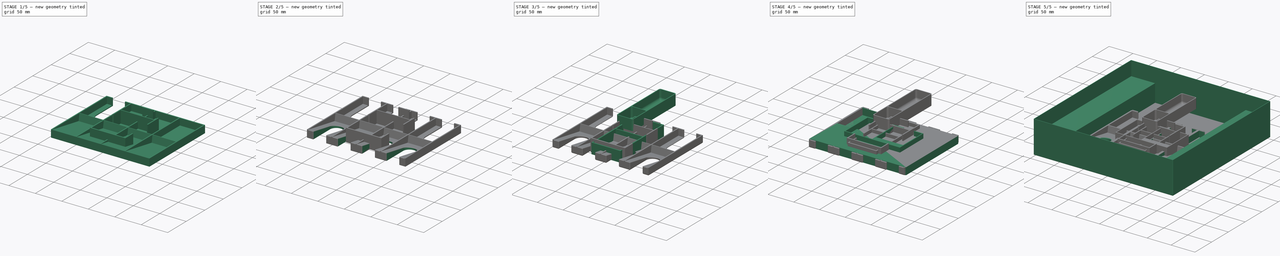
[diagram: build sequence overview — one tinted view per stage of 5, left to right]
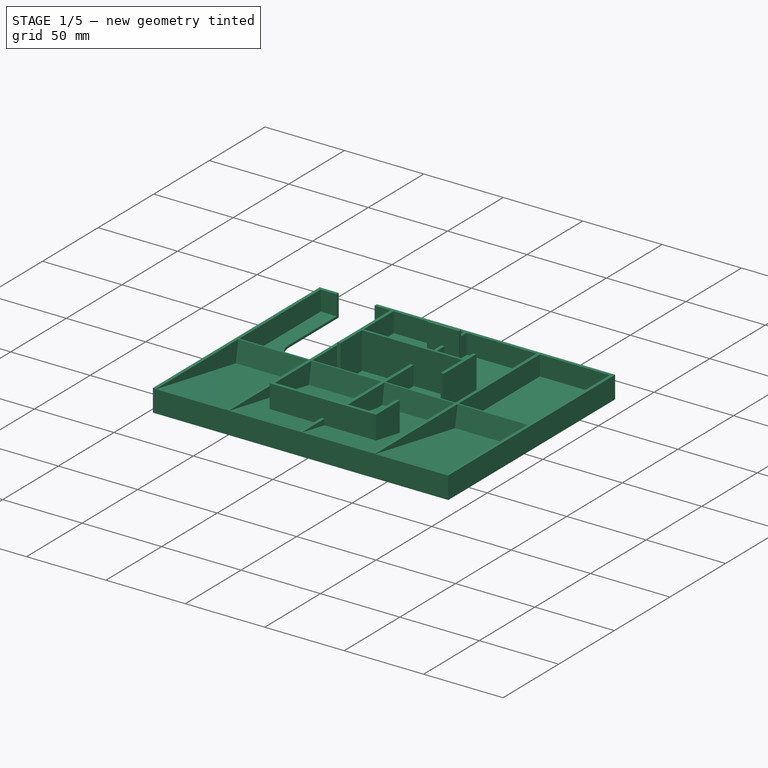
[diagram: stage 1 of 5 — iso view after this stage's code; geometry added in this stage tinted green]
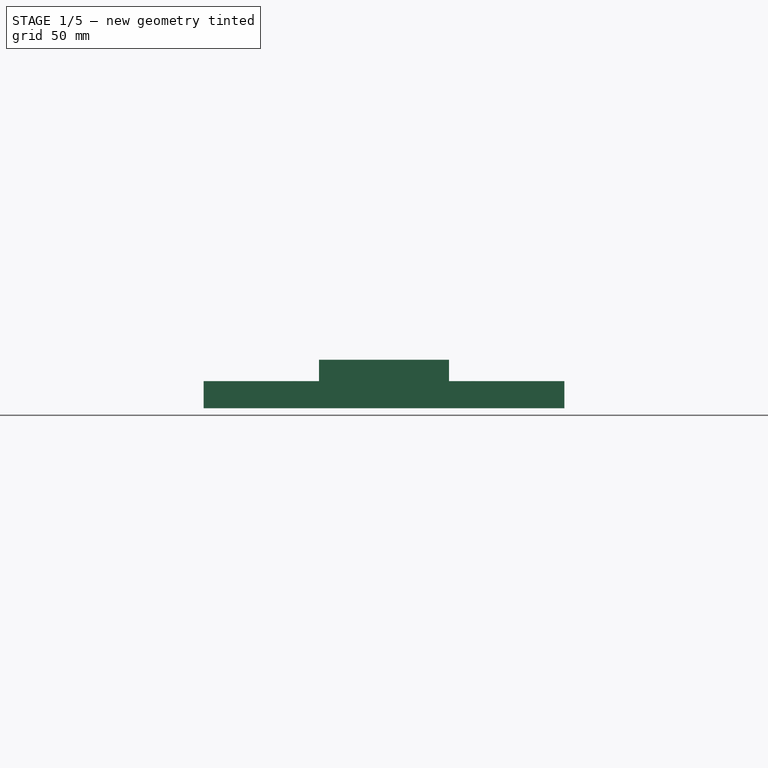
[diagram: stage 1 of 5 — front view after this stage's code; geometry added in this stage tinted green]
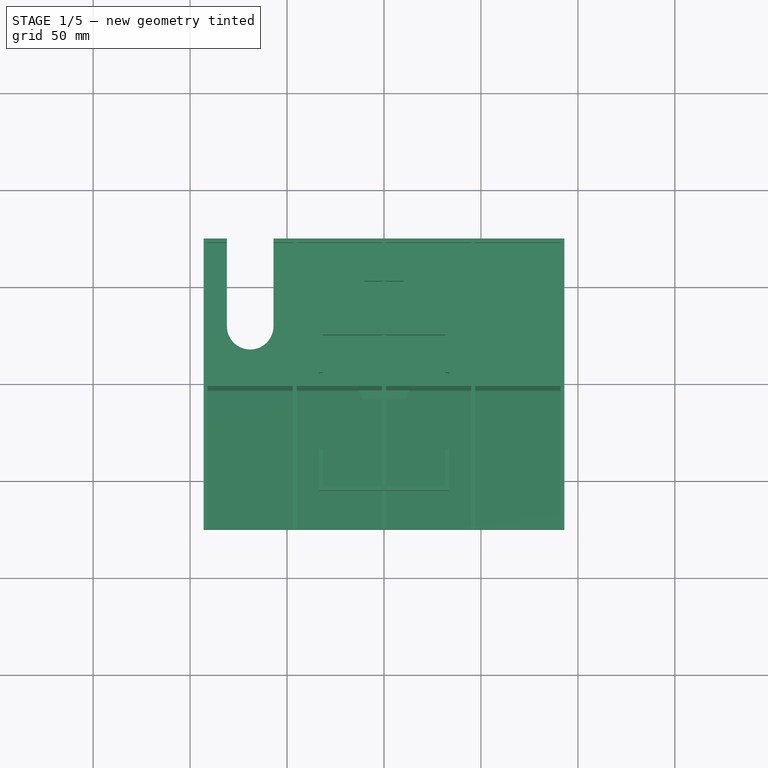
[diagram: stage 1 of 5 — top view after this stage's code; geometry added in this stage tinted green]
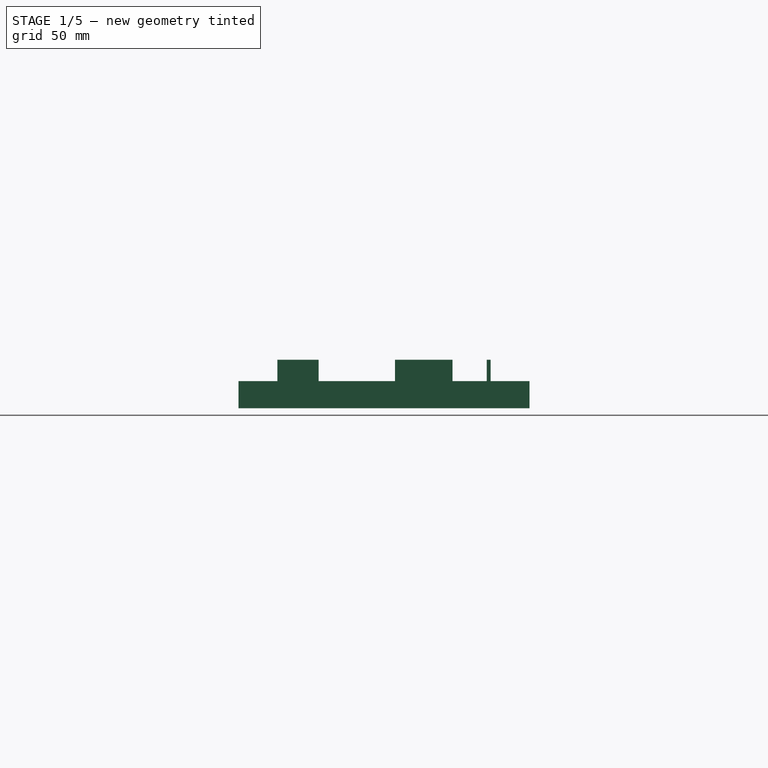
[diagram: stage 1 of 5 — right view after this stage's code; geometry added in this stage tinted green]
FCSTD DOCUMENT  (FreeCAD 0.20R29603 (Git))
Label: DungeonPetz 3
License: All rights reserved
LicenseURL: http://en.wikipedia.org/wiki/All_rights_reserved
objects: Sketcher::SketchObject×25, PartDesign::Fillet×16, PartDesign::Pocket×14, PartDesign::Pad×11, PartDesign::Body×11, PartDesign::LinearPattern×9, PartDesign::Plane×8, PartDesign::Mirrored×7, PartDesign::Thickness×3, PartDesign::MultiTransform×3, PartDesign::FeatureBase×3, App::Part×3
note: 154 computed .brp shape members not serialized (recipe doc carries the construction recipe); baked Part::Feature solids carry a one-line shape summary decoded from their .brp

FEATURE [PartDesign::Body] Body008  label="Needs"
  Group = -> [Sketch014,Pad007,DatumPlane004,Sketch015,Pocket007,LinearPattern003,Sketch016,Pocket008,LinearPattern004,Sketch017,Pocket009,MultiTransform001,LinearPattern005,Mirrored004,Fillet009,Fillet010,Fillet011]
  Origin = -> Origin011
  Placement = pos=(0,71,0) rot=(0,0,1;0rad)
  Tip = -> Fillet011
FEATURE [PartDesign::Mirrored] Mirrored005
  MirrorPlane = -> XZ_Plane012
FEATURE [Sketcher::SketchObject] Sketch018
  FullyConstrained = true
  MapMode = 5
  Support = -> [XY_Plane012]
  sketch-geometry (4):
    g0: LineSegment StartX=-93 StartY=75 StartZ=0 EndX=93 EndY=75 EndZ=0
    g1: LineSegment StartX=93 StartY=75 StartZ=0 EndX=93 EndY=-75 EndZ=0
    g2: LineSegment StartX=93 StartY=-75 StartZ=0 EndX=-93 EndY=-75 EndZ=0
    g3: LineSegment StartX=-93 StartY=-75 StartZ=0 EndX=-93 EndY=75 EndZ=0
  constraints (10):
    c: Coincident(g0,g1)
    c: Coincident(g1,g2)
    c: Coincident(g2,g3)
    c: Coincident(g3,g0)
    c: Horizontal(g2)
    c: Vertical(g1)
    c: DistanceX(g0,g0) = 186
    c: DistanceY(g3,g3) = 150
    c: Symmetric(g0,g2,g-1)
    c: Symmetric(g0,g0,g-2)
FEATURE [PartDesign::Pad] Pad008
  Direction = (0,0,1)
  Length = 14
  Length2 = 10
  Profile = -> Sketch018
  ReferenceAxis = -> Sketch018 [N_Axis]
  Type = 0
FEATURE [PartDesign::Plane] DatumPlane005
  Length = 219.407
  MapMode = 5
  Placement = pos=(0,0,14) rot=(0,0,1;0rad)
  ResizeMode = 0
  Support = -> [Pad008]
  Width = 183.407
FEATURE [Sketcher::SketchObject] Sketch019
  AttachmentOffset = pos=(-69,0,0) rot=(0,0,1;0rad)
  FullyConstrained = true
  MapMode = 5
  Placement = pos=(-69,0,14) rot=(0,0,1;0rad)
  Support = -> [DatumPlane005]
  sketch-geometry (4):
    g0: LineSegment StartX=-22 StartY=73 StartZ=0 EndX=22 EndY=73 EndZ=0
    g1: LineSegment StartX=22 StartY=73 StartZ=0 EndX=22 EndY=0 EndZ=0
    g2: LineSegment StartX=22 StartY=0 StartZ=0 EndX=-22 EndY=0 EndZ=0
    g3: LineSegment StartX=-22 StartY=0 StartZ=0 EndX=-22 EndY=73 EndZ=0
  constraints (11):
    c: Coincident(g0,g1)
    c: Coincident(g1,g2)
    c: Coincident(g2,g3)
    c: Coincident(g3,g0)
    c: Horizontal(g2)
    c: Vertical(g1)
    c: Vertical(g3)
    c: PointOnObject(g1,g-1)
    c: DistanceY(g3,g3) = 73
    c: DistanceX(g0,g0) = 44
    c: Symmetric(g0,g0,g-2)
FEATURE [PartDesign::Pocket] Pocket010
  BaseFeature = -> Pad008
  Direction = (0,0,-1)
  Length = 12.5
  Length2 = 5
  Profile = -> Sketch019
  ReferenceAxis = -> Sketch019 [N_Axis]
  Type = 0
FEATURE [PartDesign::LinearPattern] LinearPattern006
  BaseFeature = -> Pocket010
  Direction = -> Sketch019 [H_Axis]
  Length = 138
  Occurrences = 4
  Originals = -> [Pocket010]
FEATURE [Sketcher::SketchObject] Sketch020
  AttachmentOffset = pos=(-69,-1,0) rot=(1,0,0;-0.174533rad)
  FullyConstrained = true
  MapMode = 5
  Placement = pos=(-69,-1,14) rot=(1,0,0;6.10865rad)
  Support = -> [DatumPlane005]
  sketch-geometry (4):
    g0: LineSegment StartX=-22 StartY=0 StartZ=0 EndX=22 EndY=0 EndZ=0
    g1: LineSegment StartX=22 StartY=0 StartZ=0 EndX=22 EndY=-73 EndZ=0
    g2: LineSegment StartX=22 StartY=-73 StartZ=0 EndX=-22 EndY=-73 EndZ=0
    g3: LineSegment StartX=-22 StartY=-73 StartZ=0 EndX=-22 EndY=0 EndZ=0
  constraints (11):
    c: Coincident(g0,g1)
    c: Coincident(g1,g2)
    c: Coincident(g2,g3)
    c: Coincident(g3,g0)
    c: Horizontal(g2)
    c: Vertical(g1)
    c: Vertical(g3)
    c: PointOnObject(g0,g-1)
    c: DistanceY(g3,g3) = 73
    c: DistanceX(g0,g0) = 44
    c: Symmetric(g0,g0,g-2)
FEATURE [PartDesign::Pocket] Pocket011
  BaseFeature = -> LinearPattern006
  Direction = (0,-0.173648,-0.984808)
  Length = 13
  Length2 = 5
  Profile = -> Sketch020
  ReferenceAxis = -> Sketch020 [N_Axis]
  Type = 0
FEATURE [PartDesign::LinearPattern] LinearPattern007
  BaseFeature = -> Pocket011
  Direction = -> Sketch020 [H_Axis]
  Length = 138
  Occurrences = 4
  Originals = -> [Pocket011]
FEATURE [Sketcher::SketchObject] Sketch021
  AttachmentOffset = pos=(-69,30,0) rot=(0,0,1;0rad)
  FullyConstrained = false
  MapMode = 5
  Placement = pos=(-69,30,14) rot=(0,0,1;0rad)
  Support = -> [DatumPlane005]
  sketch-geometry (4):
    g0: LineSegment StartX=12 StartY=0 StartZ=0 EndX=12 EndY=50 EndZ=0
    g1: LineSegment StartX=12 StartY=50 StartZ=0 EndX=-12 EndY=50 EndZ=0
    g2: LineSegment StartX=-12 StartY=50 StartZ=0 EndX=-12 EndY=0 EndZ=0
    g3: ArcOfCircle CenterX=0 CenterY=0 CenterZ=0 NormalX=0 NormalY=0 NormalZ=1 AngleXU=0 Radius=12 StartAngle=3.14159 EndAngle=6.28319
  constraints (9):
    c: Coincident(g0,g1)
    c: Coincident(g1,g2)
    c: Horizontal(g1)
    c: Vertical(g0)
    c: Vertical(g2)
    c: PointOnObject(g2,g-1)
    c: DistanceX(g1,g1) = 24
    c: Coincident(g3,g-1)
    c: DistanceY(g2,g2) = 50
FEATURE [PartDesign::LinearPattern] LinearPattern008
  Direction = -> Sketch021 [H_Axis]
  Length = 138
  Occurrences = 4
FEATURE [PartDesign::Pocket] Pocket012
  BaseFeature = -> LinearPattern007
  Direction = (0,0,-1)
  Length = 5
  Length2 = 5
  Profile = -> Sketch021
  ReferenceAxis = -> Sketch021 [N_Axis]
  Type = 1
FEATURE [PartDesign::Body] Body009  label="Needs001"
  Group = -> [Sketch018,Pad008,DatumPlane005,Sketch019,Pocket010,LinearPattern006,Sketch020,Pocket011,LinearPattern007,Sketch021,Pocket012,MultiTransform002,LinearPattern008,Mirrored005,Fillet012,Fillet013,Fillet014]
  Origin = -> Origin012
  Placement = pos=(0,71,0) rot=(0,0,1;0rad)
  Tip = -> Fillet014
FEATURE [App::Part] Part001  label="Cards"
  Group = -> [Body001,Body008,Body009]
  Origin = -> Origin002
FEATURE [Sketcher::SketchObject] Sketch022
  FullyConstrained = true
  MapMode = 5
  Support = -> [XY_Plane013]
  expr: Constraints[9] = 78 + 26 + 6
  sketch-geometry (4):
    g0: LineSegment StartX=-33.5 StartY=55 StartZ=0 EndX=33.5 EndY=55 EndZ=0
    g1: LineSegment StartX=33.5 StartY=55 StartZ=0 EndX=33.5 EndY=-55 EndZ=0
    g2: LineSegment StartX=33.5 StartY=-55 StartZ=0 EndX=-33.5 EndY=-55 EndZ=0
    g3: LineSegment StartX=-33.5 StartY=-55 StartZ=0 EndX=-33.5 EndY=55 EndZ=0
  constraints (10):
    c: Coincident(g0,g1)
    c: Coincident(g1,g2)
    c: Coincident(g2,g3)
    c: Coincident(g3,g0)
    c: Horizontal(g2)
    c: Vertical(g1)
    c: DistanceX(g0,g0) = 67
    c: Symmetric(g0,g0,g-2)
    c: Symmetric(g0,g2,g-1)
    c: DistanceY(g3,g3) = 110
FEATURE [PartDesign::Pad] Pad009  label="CagesPad"
  Direction = (0,0,1)
  Length = 25
  Length2 = 10
  Profile = -> Sketch022
  ReferenceAxis = -> Sketch022 [N_Axis]
  Type = 0
FEATURE [PartDesign::Thickness] Thickness002
  Base = -> Pad009 [Face6]
  BaseFeature = -> Pad009
  Intersection = false
  Join = 0
  Mode = 0
  Reversed = true
  SupportTransform = false
  Value = 2
FEATURE [PartDesign::Plane] DatumPlane006
  Length = 124.832
  MapMode = 5
  Placement = pos=(-31.5,0,0) rot=(0.57735,0.57735,0.57735;2.0944rad)
  ResizeMode = 0
  Support = -> [Thickness002]
  Width = 64.8324
FEATURE [Sketcher::SketchObject] Sketch023
  AttachmentOffset = pos=(26,0,0) rot=(0,0,1;0rad)
  FullyConstrained = true
  MapMode = 5
  Placement = pos=(-31.5,26,0) rot=(0.57735,0.57735,0.57735;2.0944rad)
  Support = -> [DatumPlane006]
  expr: Constraints[9] = <<CagesPad>>.Length
  sketch-geometry (4):
    g0: LineSegment StartX=-0.75 StartY=25 StartZ=0 EndX=0.75 EndY=25 EndZ=0
    g1: LineSegment StartX=0.75 StartY=25 StartZ=0 EndX=0.75 EndY=0 EndZ=0
    g2: LineSegment StartX=0.75 StartY=0 StartZ=0 EndX=-0.75 EndY=0 EndZ=0
    g3: LineSegment StartX=-0.75 StartY=0 StartZ=0 EndX=-0.75 EndY=25 EndZ=0
  constraints (11):
    c: Coincident(g0,g1)
    c: Coincident(g1,g2)
    c: Coincident(g2,g3)
    c: Coincident(g3,g0)
    c: Horizontal(g2)
    c: Vertical(g1)
    c: Vertical(g3)
    c: PointOnObject(g2,g-1)
    c: Symmetric(g0,g0,g-2)
    c: DistanceY(g3,g3) = 25
    c: DistanceX(g0,g0) = 1.5
FEATURE [PartDesign::Pad] Pad010
  BaseFeature = -> Thickness002
  Direction = (1,0,0)
  Length = 10
  Length2 = 10
  Profile = -> Sketch023
  ReferenceAxis = -> Sketch023 [N_Axis]
  Type = 3
  UpToFace = -> Thickness002 [Face8]
FEATURE [PartDesign::Plane] DatumPlane007
  Length = 84.1697
  MapMode = 5
  Placement = pos=(0,0,2) rot=(0,0,1;0rad)
  ResizeMode = 0
  Support = -> [Pad010]
  Width = 127.17
FEATURE [Sketcher::SketchObject] Sketch024
  AttachmentOffset = pos=(30,0,0) rot=(0,0,1;0rad)
  FullyConstrained = true
  MapMode = 5
  Placement = pos=(30,0,2) rot=(0,0,1;0rad)
  Support = -> [DatumPlane007]
  sketch-geometry (2):
    g0: Circle CenterX=0 CenterY=-14 CenterZ=0 NormalX=0 NormalY=0 NormalZ=1 AngleXU=0 Radius=20
    g1: Circle CenterX=0 CenterY=55 CenterZ=0 NormalX=0 NormalY=0 NormalZ=1 AngleXU=0 Radius=20
  constraints (6):
    c: PointOnObject(g1,g-2)
    c: Radius(g1) = 20
    c: Radius(g0) = 20
    c: DistanceY(g-1,g1) = 55
    c: PointOnObject(g0,g-2)
    c: DistanceY(g0,g-1) = 14
FEATURE [PartDesign::Pocket] Pocket013
  BaseFeature = -> Pad010
  Direction = (0,0,-1)
  Length = 5
  Length2 = 5
  Midplane = true
  Profile = -> Sketch024
  ReferenceAxis = -> Sketch024 [N_Axis]
  Type = 1
FEATURE [PartDesign::Mirrored] Mirrored006
  BaseFeature = -> Pocket013
  MirrorPlane = -> YZ_Plane013
  Originals = -> [Pocket013]
FEATURE [PartDesign::Fillet] Fillet015
  Base = -> Mirrored006 [Face2]
  BaseFeature = -> Mirrored006
  Radius = 1
  SupportTransform = false
  UseAllEdges = false
FEATURE [PartDesign::Body] Body010  label="Cages"
  Group = -> [Sketch022,Pad009,Thickness002,DatumPlane006,Sketch023,Pad010,DatumPlane007,Sketch024,Pocket013,Mirrored006,Fillet015]
  Origin = -> Origin013
  Placement = pos=(-61,-60,0) rot=(0,0,1;0rad)
  Tip = -> Fillet015
FEATURE [App::Part] Part002  label="Cardboard"
  Group = -> [Body002,Body003,Body004,Body010]
  Origin = -> Origin004
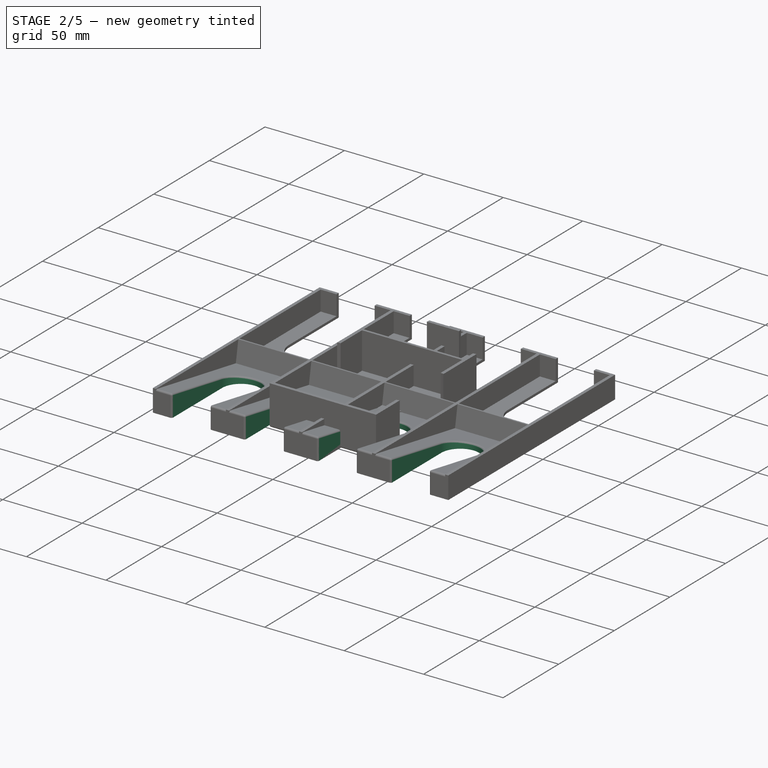
[diagram: stage 2 of 5 — iso view after this stage's code; geometry added in this stage tinted green]
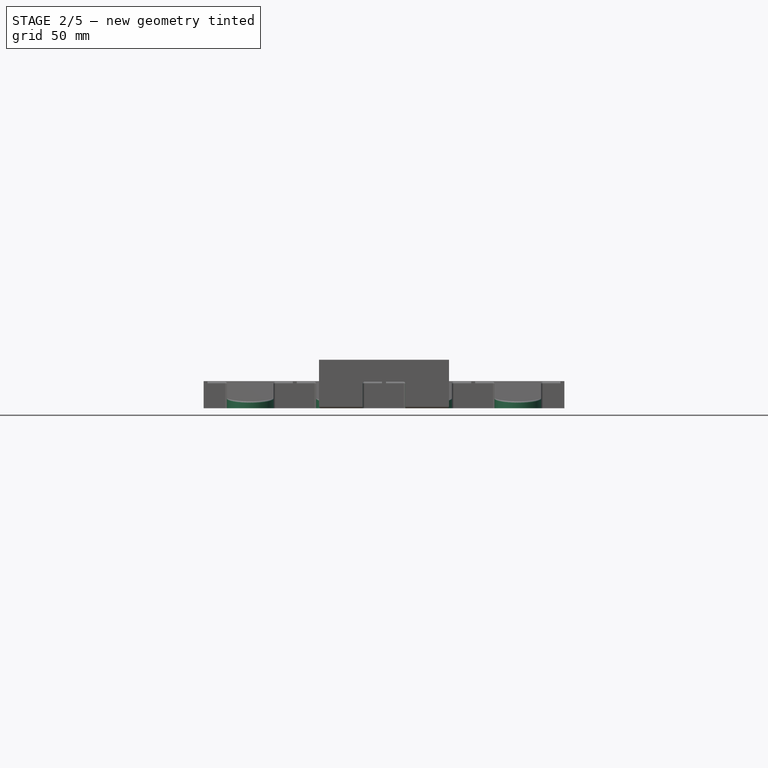
[diagram: stage 2 of 5 — front view after this stage's code; geometry added in this stage tinted green]
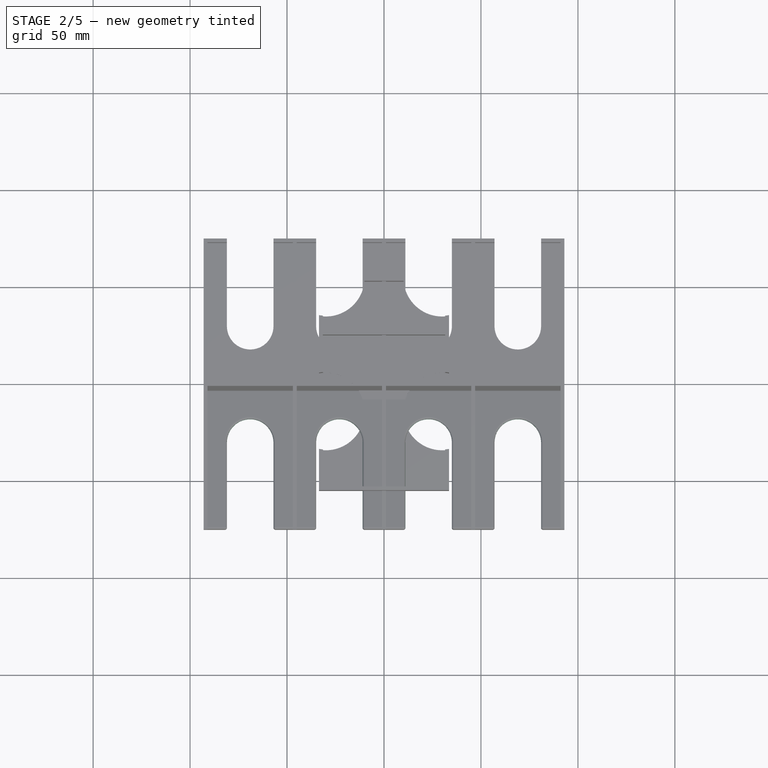
[diagram: stage 2 of 5 — top view after this stage's code; geometry added in this stage tinted green]
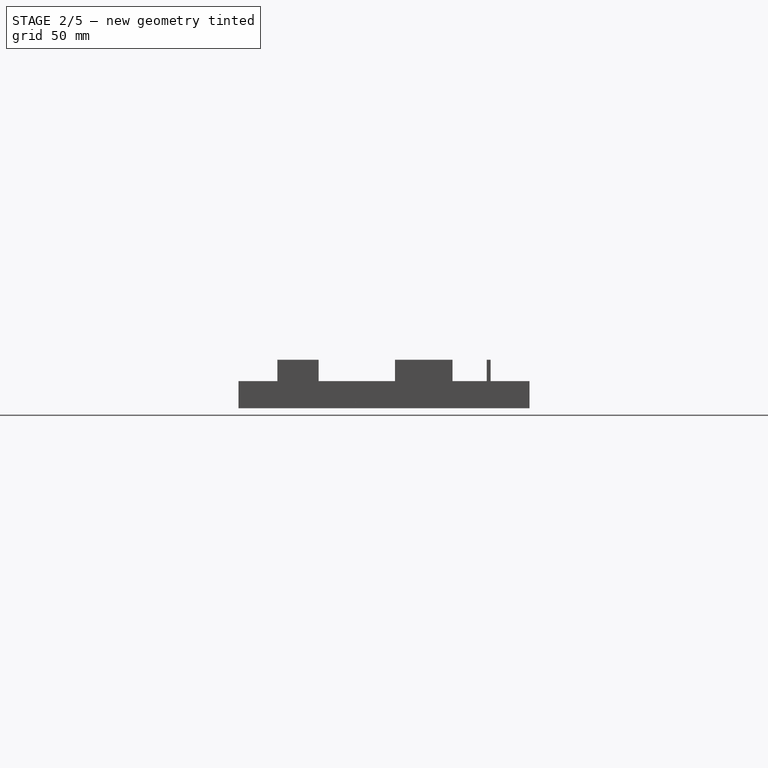
[diagram: stage 2 of 5 — right view after this stage's code; geometry added in this stage tinted green]
FEATURE [PartDesign::Body] Body007  label="PlayerClone03"
  BaseFeature = -> Body004
  Group = -> [Clone002]
  Origin = -> Origin010
  Placement = pos=(96,0,0) rot=(0,0,1;0rad)
  Tip = -> Clone002
FEATURE [App::Part] Part  label="Box"
  Group = -> [Body,Body005,Body006,Body007]
  Origin = -> Origin001
FEATURE [PartDesign::Mirrored] Mirrored004
  MirrorPlane = -> XZ_Plane011
FEATURE [Sketcher::SketchObject] Sketch014
  FullyConstrained = true
  MapMode = 5
  Support = -> [XY_Plane011]
  sketch-geometry (4):
    g0: LineSegment StartX=-93 StartY=75 StartZ=0 EndX=93 EndY=75 EndZ=0
    g1: LineSegment StartX=93 StartY=75 StartZ=0 EndX=93 EndY=-75 EndZ=0
    g2: LineSegment StartX=93 StartY=-75 StartZ=0 EndX=-93 EndY=-75 EndZ=0
    g3: LineSegment StartX=-93 StartY=-75 StartZ=0 EndX=-93 EndY=75 EndZ=0
  constraints (10):
    c: Coincident(g0,g1)
    c: Coincident(g1,g2)
    c: Coincident(g2,g3)
    c: Coincident(g3,g0)
    c: Horizontal(g2)
    c: Vertical(g1)
    c: DistanceX(g0,g0) = 186
    c: DistanceY(g3,g3) = 150
    c: Symmetric(g0,g2,g-1)
    c: Symmetric(g0,g0,g-2)
FEATURE [PartDesign::Pad] Pad007
  Direction = (0,0,1)
  Length = 14
  Length2 = 10
  Profile = -> Sketch014
  ReferenceAxis = -> Sketch014 [N_Axis]
  Type = 0
FEATURE [PartDesign::Plane] DatumPlane004
  Length = 219.407
  MapMode = 5
  Placement = pos=(0,0,14) rot=(0,0,1;0rad)
  ResizeMode = 0
  Support = -> [Pad007]
  Width = 183.407
FEATURE [Sketcher::SketchObject] Sketch015
  AttachmentOffset = pos=(-69,0,0) rot=(0,0,1;0rad)
  FullyConstrained = true
  MapMode = 5
  Placement = pos=(-69,0,14) rot=(0,0,1;0rad)
  Support = -> [DatumPlane004]
  sketch-geometry (4):
    g0: LineSegment StartX=-22 StartY=73 StartZ=0 EndX=22 EndY=73 EndZ=0
    g1: LineSegment StartX=22 StartY=73 StartZ=0 EndX=22 EndY=0 EndZ=0
    g2: LineSegment StartX=22 StartY=0 StartZ=0 EndX=-22 EndY=0 EndZ=0
    g3: LineSegment StartX=-22 StartY=0 StartZ=0 EndX=-22 EndY=73 EndZ=0
  constraints (11):
    c: Coincident(g0,g1)
    c: Coincident(g1,g2)
    c: Coincident(g2,g3)
    c: Coincident(g3,g0)
    c: Horizontal(g2)
    c: Vertical(g1)
    c: Vertical(g3)
    c: PointOnObject(g1,g-1)
    c: DistanceY(g3,g3) = 73
    c: DistanceX(g0,g0) = 44
    c: Symmetric(g0,g0,g-2)
FEATURE [PartDesign::Pocket] Pocket007
  BaseFeature = -> Pad007
  Direction = (0,0,-1)
  Length = 12.5
  Length2 = 5
  Profile = -> Sketch015
  ReferenceAxis = -> Sketch015 [N_Axis]
  Type = 0
FEATURE [PartDesign::LinearPattern] LinearPattern003
  BaseFeature = -> Pocket007
  Direction = -> Sketch015 [H_Axis]
  Length = 138
  Occurrences = 4
  Originals = -> [Pocket007]
FEATURE [Sketcher::SketchObject] Sketch016
  AttachmentOffset = pos=(-69,-1,0) rot=(1,0,0;-0.174533rad)
  FullyConstrained = true
  MapMode = 5
  Placement = pos=(-69,-1,14) rot=(1,0,0;6.10865rad)
  Support = -> [DatumPlane004]
  sketch-geometry (4):
    g0: LineSegment StartX=-22 StartY=0 StartZ=0 EndX=22 EndY=0 EndZ=0
    g1: LineSegment StartX=22 StartY=0 StartZ=0 EndX=22 EndY=-73 EndZ=0
    g2: LineSegment StartX=22 StartY=-73 StartZ=0 EndX=-22 EndY=-73 EndZ=0
    g3: LineSegment StartX=-22 StartY=-73 StartZ=0 EndX=-22 EndY=0 EndZ=0
  constraints (11):
    c: Coincident(g0,g1)
    c: Coincident(g1,g2)
    c: Coincident(g2,g3)
    c: Coincident(g3,g0)
    c: Horizontal(g2)
    c: Vertical(g1)
    c: Vertical(g3)
    c: PointOnObject(g0,g-1)
    c: DistanceY(g3,g3) = 73
    c: DistanceX(g0,g0) = 44
    c: Symmetric(g0,g0,g-2)
FEATURE [PartDesign::Pocket] Pocket008
  BaseFeature = -> LinearPattern003
  Direction = (0,-0.173648,-0.984808)
  Length = 13
  Length2 = 5
  Profile = -> Sketch016
  ReferenceAxis = -> Sketch016 [N_Axis]
  Type = 0
FEATURE [PartDesign::LinearPattern] LinearPattern004
  BaseFeature = -> Pocket008
  Direction = -> Sketch016 [H_Axis]
  Length = 138
  Occurrences = 4
  Originals = -> [Pocket008]
FEATURE [Sketcher::SketchObject] Sketch017
  AttachmentOffset = pos=(-69,30,0) rot=(0,0,1;0rad)
  FullyConstrained = false
  MapMode = 5
  Placement = pos=(-69,30,14) rot=(0,0,1;0rad)
  Support = -> [DatumPlane004]
  sketch-geometry (4):
    g0: LineSegment StartX=12 StartY=0 StartZ=0 EndX=12 EndY=50 EndZ=0
    g1: LineSegment StartX=12 StartY=50 StartZ=0 EndX=-12 EndY=50 EndZ=0
    g2: LineSegment StartX=-12 StartY=50 StartZ=0 EndX=-12 EndY=0 EndZ=0
    g3: ArcOfCircle CenterX=0 CenterY=0 CenterZ=0 NormalX=0 NormalY=0 NormalZ=1 AngleXU=0 Radius=12 StartAngle=3.14159 EndAngle=6.28319
  constraints (9):
    c: Coincident(g0,g1)
    c: Coincident(g1,g2)
    c: Horizontal(g1)
    c: Vertical(g0)
    c: Vertical(g2)
    c: PointOnObject(g2,g-1)
    c: DistanceX(g1,g1) = 24
    c: Coincident(g3,g-1)
    c: DistanceY(g2,g2) = 50
FEATURE [PartDesign::LinearPattern] LinearPattern005
  Direction = -> Sketch017 [H_Axis]
  Length = 138
  Occurrences = 4
FEATURE [PartDesign::Pocket] Pocket009
  BaseFeature = -> LinearPattern004
  Direction = (0,0,-1)
  Length = 5
  Length2 = 5
  Profile = -> Sketch017
  ReferenceAxis = -> Sketch017 [N_Axis]
  Type = 1
FEATURE [PartDesign::MultiTransform] MultiTransform001
  BaseFeature = -> Pocket009
  Originals = -> [Pocket009]
  Transformations = -> [LinearPattern005,Mirrored004]
FEATURE [PartDesign::Fillet] Fillet009
  Base = -> MultiTransform001 [Edge169,Edge160,Edge158,Edge149,Edge147,Edge138,Edge136,Edge129,Edge172,Edge161,Edge164,Edge150,Edge153,Edge139,Edge142,Edge130,Edge170,Edge167,Edge165,Edge159,Edge156,Edge154,Edge148,Edge145,Edge143,Edge137,Edge134,Edge132]
  BaseFeature = -> MultiTransform001
  Radius = 1
  SupportTransform = false
  UseAllEdges = false
FEATURE [PartDesign::MultiTransform] MultiTransform002
  BaseFeature = -> Pocket012
  Originals = -> [Pocket012]
  Transformations = -> [LinearPattern008,Mirrored005]
FEATURE [PartDesign::Fillet] Fillet012
  Base = -> MultiTransform002 [Edge169,Edge160,Edge158,Edge149,Edge147,Edge138,Edge136,Edge129,Edge172,Edge161,Edge164,Edge150,Edge153,Edge139,Edge142,Edge130,Edge170,Edge167,Edge165,Edge159,Edge156,Edge154,Edge148,Edge145,Edge143,Edge137,Edge134,Edge132]
  BaseFeature = -> MultiTransform002
  Radius = 1
  SupportTransform = false
  UseAllEdges = false
FEATURE [PartDesign::Fillet] Fillet013
  Base = -> Fillet012 [Edge61,Edge67,Edge62,Edge73,Edge72,Edge88,Edge87,Edge93,Edge99,Edge98,Edge108,Edge107,Edge119,Edge125,Edge124,Edge134,Edge133,Edge139,Edge145,Edge144]
  BaseFeature = -> Fillet012
  Radius = 1
  SupportTransform = false
  UseAllEdges = false
FEATURE [PartDesign::Fillet] Fillet014
  Base = -> Fillet013 [Edge108,Edge74,Edge68,Edge82,Edge90,Edge98,Edge106,Edge72,Edge81,Edge93,Edge105,Edge110]
  BaseFeature = -> Fillet013
  Radius = 2
  SupportTransform = false
  UseAllEdges = false
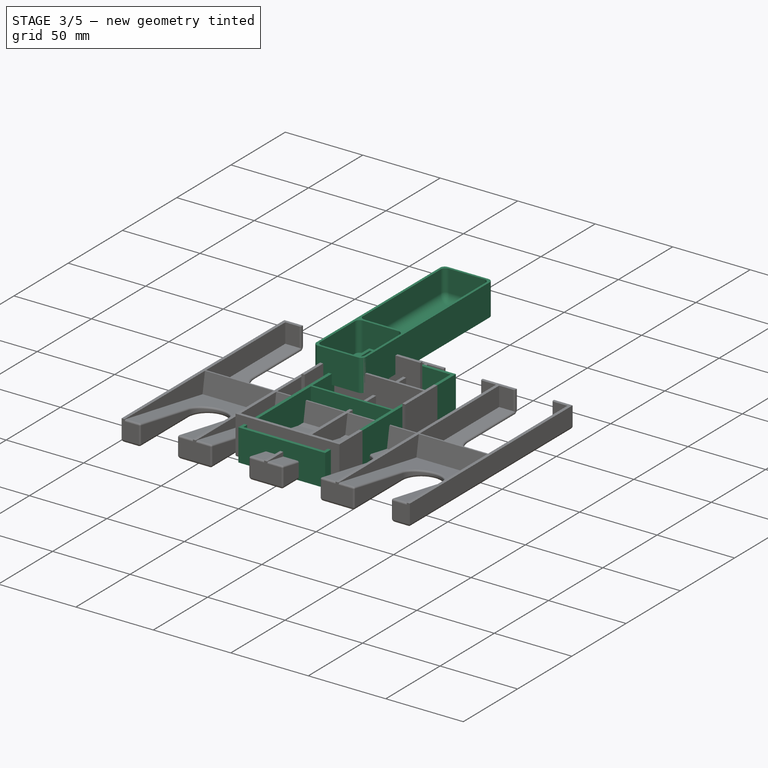
[diagram: stage 3 of 5 — iso view after this stage's code; geometry added in this stage tinted green]
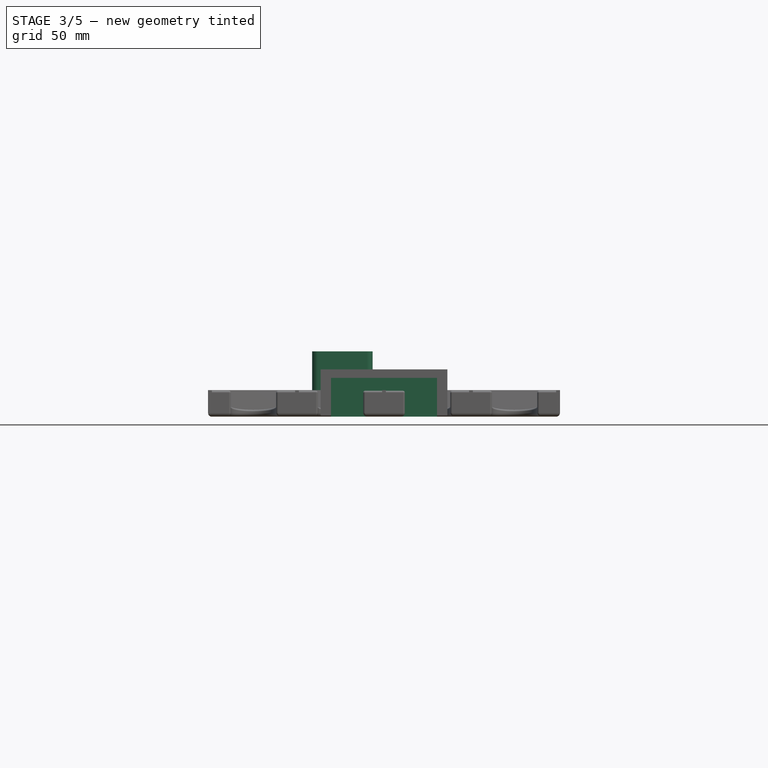
[diagram: stage 3 of 5 — front view after this stage's code; geometry added in this stage tinted green]
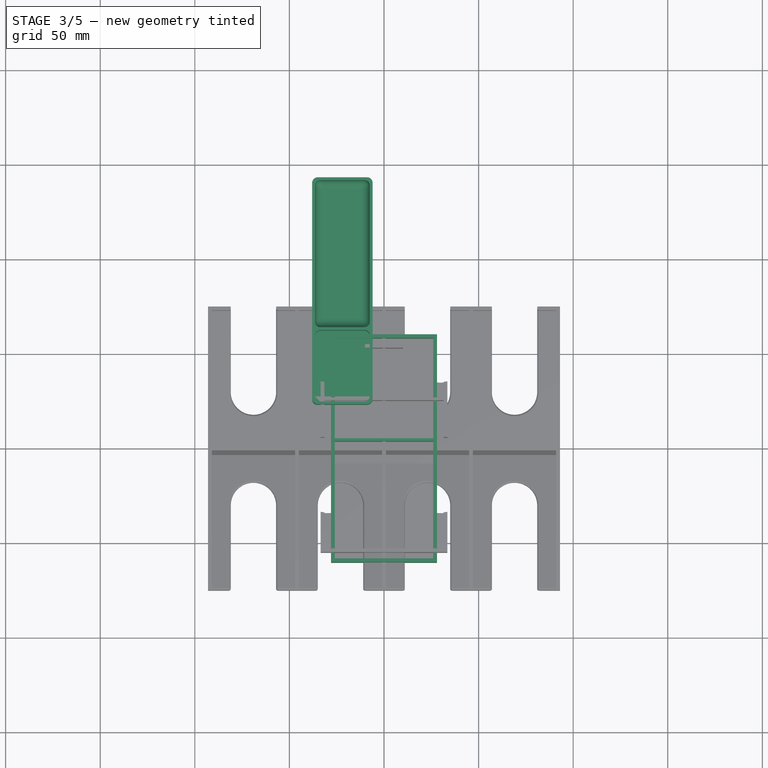
[diagram: stage 3 of 5 — top view after this stage's code; geometry added in this stage tinted green]
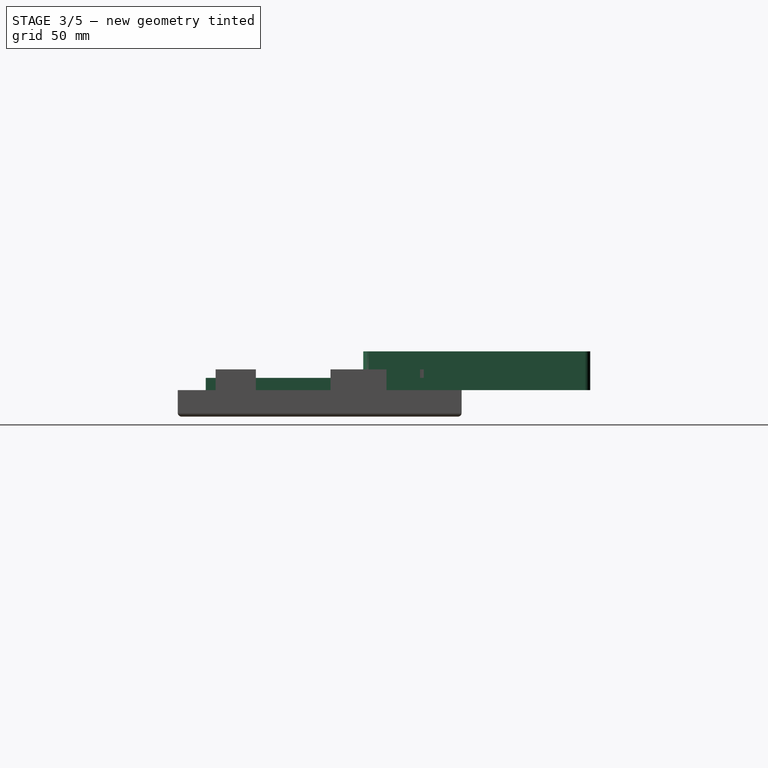
[diagram: stage 3 of 5 — right view after this stage's code; geometry added in this stage tinted green]
FEATURE [PartDesign::Body] Body002  label="RoundSetup-Horizontal"
  Group = -> [Sketch006,Pad003,DatumPlane001,Sketch007,Pocket003,Sketch008,Pocket004,Mirrored002,Fillet003,Fillet004]
  Origin = -> Origin005
  Placement = pos=(-41,113,14) rot=(0,0,1;0rad)
  Tip = -> Fillet004
FEATURE [Sketcher::SketchObject] Sketch009
  FullyConstrained = true
  MapMode = 5
  Support = -> [XY_Plane006]
  expr: Constraints[9] = 62 + 53 + 4.5 + 1
  sketch-geometry (4):
    g0: LineSegment StartX=-28 StartY=60.25 StartZ=0 EndX=28 EndY=60.25 EndZ=0
    g1: LineSegment StartX=28 StartY=60.25 StartZ=0 EndX=28 EndY=-60.25 EndZ=0
    g2: LineSegment StartX=28 StartY=-60.25 StartZ=0 EndX=-28 EndY=-60.25 EndZ=0
    g3: LineSegment StartX=-28 StartY=-60.25 StartZ=0 EndX=-28 EndY=60.25 EndZ=0
  constraints (10):
    c: Coincident(g0,g1)
    c: Coincident(g1,g2)
    c: Coincident(g2,g3)
    c: Coincident(g3,g0)
    c: Horizontal(g2)
    c: Vertical(g1)
    c: Symmetric(g0,g0,g-2)
    c: Symmetric(g0,g2,g-1)
    c: DistanceX(g0,g0) = 56
    c: DistanceY(g3,g3) = 120.5
FEATURE [PartDesign::Pad] Pad004
  Direction = (0,0,1)
  Length = 20.5
  Length2 = 10
  Profile = -> Sketch009
  ReferenceAxis = -> Sketch009 [N_Axis]
  Type = 0
FEATURE [PartDesign::Plane] DatumPlane002
  Length = 72.4292
  MapMode = 5
  Placement = pos=(0,0,20.5) rot=(0,0,1;0rad)
  ResizeMode = 0
  Support = -> [Pad004]
  Width = 136.929
FEATURE [Sketcher::SketchObject] Sketch010
  AttachmentOffset = pos=(0,4.5,0) rot=(0,0,1;0rad)
  FullyConstrained = true
  MapMode = 5
  Placement = pos=(0,4.5,20.5) rot=(0,0,1;0rad)
  Support = -> [DatumPlane002]
  sketch-geometry (8):
    g0: LineSegment StartX=-26 StartY=0.75 StartZ=0 EndX=26 EndY=0.75 EndZ=0
    g1: LineSegment StartX=26 StartY=0.75 StartZ=0 EndX=26 EndY=53.75 EndZ=0
    g2: LineSegment StartX=26 StartY=53.75 StartZ=0 EndX=-26 EndY=53.75 EndZ=0
    g3: LineSegment StartX=-26 StartY=53.75 StartZ=0 EndX=-26 EndY=0.75 EndZ=0
    g4: LineSegment StartX=-26 StartY=-0.75 StartZ=0 EndX=26 EndY=-0.75 EndZ=0
    g5: LineSegment StartX=26 StartY=-0.75 StartZ=0 EndX=26 EndY=-62.75 EndZ=0
    g6: LineSegment StartX=26 StartY=-62.75 StartZ=0 EndX=-26 EndY=-62.75 EndZ=0
    g7: LineSegment StartX=-26 StartY=-62.75 StartZ=0 EndX=-26 EndY=-0.75 EndZ=0
  constraints (21):
    c: Coincident(g0,g1)
    c: Coincident(g1,g2)
    c: Coincident(g2,g3)
    c: Coincident(g3,g0)
    c: Horizontal(g2)
    c: Vertical(g1)
    c: Vertical(g3)
    c: Coincident(g4,g5)
    c: Coincident(g5,g6)
    c: Coincident(g6,g7)
    c: Coincident(g7,g4)
    c: Horizontal(g6)
    c: Vertical(g5)
    c: Vertical(g7)
    c: Symmetric(g4,g4,g-2)
    c: Symmetric(g0,g0,g-2)
    c: Symmetric(g0,g4,g-1)
    c: DistanceX(g2,g2) = 52
    c: DistanceY(g3,g3) = 53
    c: DistanceY(g7,g7) = 62
    c: DistanceY(g4,g0) = 1.5
FEATURE [PartDesign::Pocket] Pocket005
  BaseFeature = -> Pad004
  Direction = (0,0,-1)
  Length = 18.5
  Length2 = 5
  Profile = -> Sketch010
  ReferenceAxis = -> Sketch010 [N_Axis]
  Type = 0
FEATURE [PartDesign::Body] Body003  label="RoundSetup"
  Group = -> [Sketch009,Pad004,DatumPlane002,Sketch010,Pocket005,Sketch011,Pocket006,Mirrored003,Fillet005,Fillet006]
  Origin = -> Origin006
  Placement = pos=(-67,84,14) rot=(0,0,1;0rad)
  Tip = -> Fillet006
FEATURE [Sketcher::SketchObject] Sketch012
  FullyConstrained = true
  MapMode = 5
  Support = -> [XY_Plane007]
  sketch-geometry (4):
    g0: LineSegment StartX=-16 StartY=60 StartZ=0 EndX=16 EndY=60 EndZ=0
    g1: LineSegment StartX=16 StartY=60 StartZ=0 EndX=16 EndY=-60 EndZ=0
    g2: LineSegment StartX=16 StartY=-60 StartZ=0 EndX=-16 EndY=-60 EndZ=0
    g3: LineSegment StartX=-16 StartY=-60 StartZ=0 EndX=-16 EndY=60 EndZ=0
  constraints (10):
    c: Coincident(g0,g1)
    c: Coincident(g1,g2)
    c: Coincident(g2,g3)
    c: Coincident(g3,g0)
    c: Horizontal(g2)
    c: Vertical(g1)
    c: DistanceX(g0,g0) = 32
    c: DistanceY(g3,g3) = 120
    c: Symmetric(g0,g0,g-2)
    c: Symmetric(g0,g2,g-1)
FEATURE [PartDesign::Pad] Pad005  label="PadPlayerTray"
  Direction = (0,0,1)
  Length = 20.5
  Length2 = 10
  Profile = -> Sketch012
  ReferenceAxis = -> Sketch012 [N_Axis]
  Type = 0
FEATURE [PartDesign::Thickness] Thickness001
  Base = -> Pad005 [Face6]
  BaseFeature = -> Pad005
  Intersection = false
  Join = 0
  Mode = 0
  Reversed = true
  SupportTransform = false
  Value = 1.5
FEATURE [PartDesign::Plane] DatumPlane003
  Length = 135.492
  MapMode = 5
  Placement = pos=(-14.5,0,0) rot=(0.57735,0.57735,0.57735;2.0944rad)
  ResizeMode = 0
  Support = -> [Thickness001]
  Width = 65.4919
FEATURE [Sketcher::SketchObject] Sketch013
  AttachmentOffset = pos=(-20,0,0) rot=(0,0,1;0rad)
  FullyConstrained = true
  MapMode = 5
  Placement = pos=(-14.5,-20,0) rot=(0.57735,0.57735,0.57735;2.0944rad)
  Support = -> [DatumPlane003]
  expr: Constraints[10] = <<PadPlayerTray>>.Length
  sketch-geometry (4):
    g0: LineSegment StartX=-0.75 StartY=0 StartZ=0 EndX=0.75 EndY=0 EndZ=0
    g1: LineSegment StartX=0.75 StartY=0 StartZ=0 EndX=0.75 EndY=20.5 EndZ=0
    g2: LineSegment StartX=0.75 StartY=20.5 StartZ=0 EndX=-0.75 EndY=20.5 EndZ=0
    g3: LineSegment StartX=-0.75 StartY=20.5 StartZ=0 EndX=-0.75 EndY=0 EndZ=0
  constraints (11):
    c: Coincident(g0,g1)
    c: Coincident(g1,g2)
    c: Coincident(g2,g3)
    c: Coincident(g3,g0)
    c: Horizontal(g0)
    c: Vertical(g1)
    c: Vertical(g3)
    c: PointOnObject(g0,g-1)
    c: Symmetric(g2,g1,g-2)
    c: DistanceX(g2,g2) = 1.5
    c: DistanceY(g3,g3) = 20.5
FEATURE [PartDesign::Pad] Pad006
  BaseFeature = -> Thickness001
  Direction = (1,0,0)
  Length = 10
  Length2 = 10
  Profile = -> Sketch013
  ReferenceAxis = -> Sketch013 [N_Axis]
  Type = 3
  UpToFace = -> Thickness001 [Face8]
FEATURE [PartDesign::Fillet] Fillet007
  Base = -> Pad006 [Edge34,Edge35,Edge2,Edge1,Edge25,Edge5,Edge29,Edge32,Edge38,Edge39,Edge27,Edge8]
  BaseFeature = -> Pad006
  Radius = 3
  SupportTransform = false
  UseAllEdges = false
FEATURE [PartDesign::Fillet] Fillet008
  Base = -> Fillet007 [Face30]
  BaseFeature = -> Fillet007
  Radius = 5
  SupportTransform = false
  UseAllEdges = false
FEATURE [PartDesign::Body] Body004  label="Player"
  Group = -> [Sketch012,Pad005,Thickness001,DatumPlane003,Sketch013,Pad006,Fillet007,Fillet008]
  Origin = -> Origin007
  Placement = pos=(-22,83,14) rot=(0,0,1;0rad)
  Tip = -> Fillet008
FEATURE [PartDesign::FeatureBase] Clone
  BaseFeature = -> Body004
  Placement = pos=(-22,83,14) rot=(0,0,1;0rad)
FEATURE [PartDesign::Body] Body005  label="PlayerClone01"
  BaseFeature = -> Body004
  Group = -> [Clone]
  Origin = -> Origin008
  Placement = pos=(32,0,0) rot=(0,0,1;0rad)
  Tip = -> Clone
FEATURE [PartDesign::FeatureBase] Clone001
  BaseFeature = -> Body004
  Placement = pos=(-22,83,14) rot=(0,0,1;0rad)
FEATURE [PartDesign::Body] Body006  label="PlayerClone02"
  BaseFeature = -> Body004
  Group = -> [Clone001]
  Origin = -> Origin009
  Placement = pos=(64,0,0) rot=(0,0,1;0rad)
  Tip = -> Clone001
FEATURE [PartDesign::FeatureBase] Clone002
  BaseFeature = -> Body004
  Placement = pos=(-22,83,14) rot=(0,0,1;0rad)
FEATURE [PartDesign::Fillet] Fillet010
  Base = -> Fillet009 [Edge61,Edge67,Edge62,Edge73,Edge72,Edge88,Edge87,Edge93,Edge99,Edge98,Edge108,Edge107,Edge119,Edge125,Edge124,Edge134,Edge133,Edge139,Edge145,Edge144]
  BaseFeature = -> Fillet009
  Radius = 1
  SupportTransform = false
  UseAllEdges = false
FEATURE [PartDesign::Fillet] Fillet011
  Base = -> Fillet010 [Edge108,Edge74,Edge68,Edge82,Edge90,Edge98,Edge106,Edge72,Edge81,Edge93,Edge105,Edge110]
  BaseFeature = -> Fillet010
  Radius = 2
  SupportTransform = false
  UseAllEdges = false
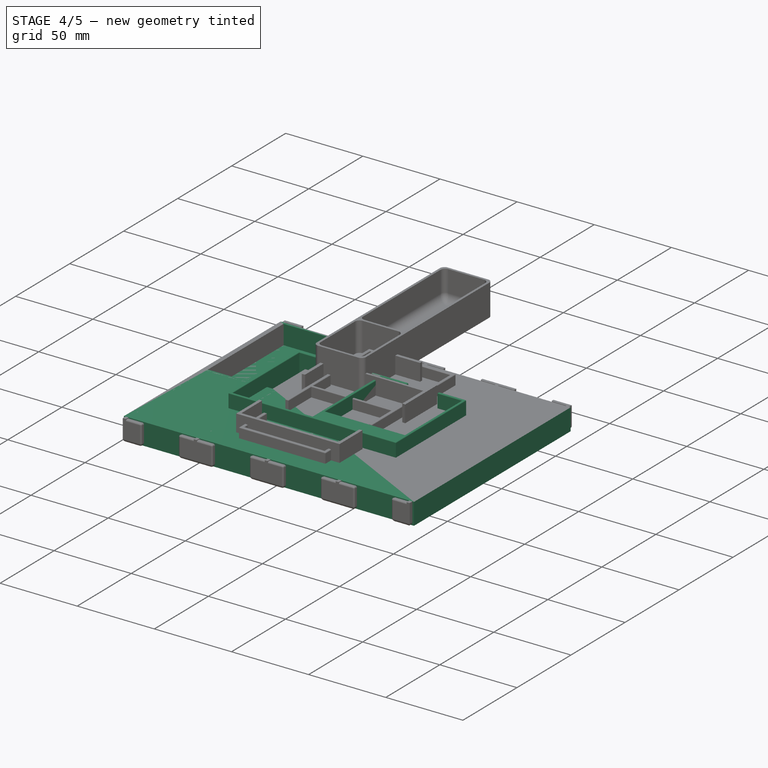
[diagram: stage 4 of 5 — iso view after this stage's code; geometry added in this stage tinted green]
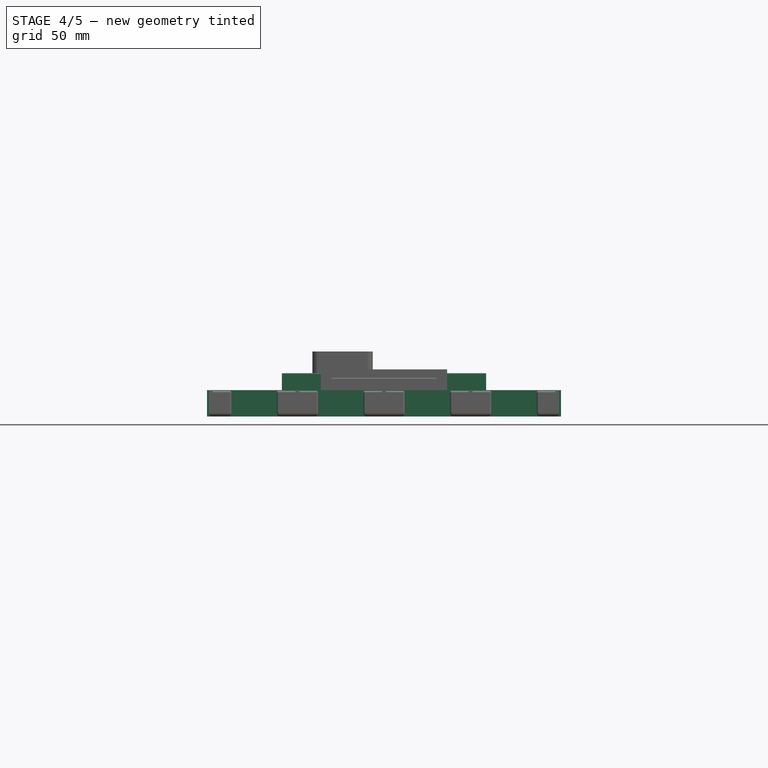
[diagram: stage 4 of 5 — front view after this stage's code; geometry added in this stage tinted green]
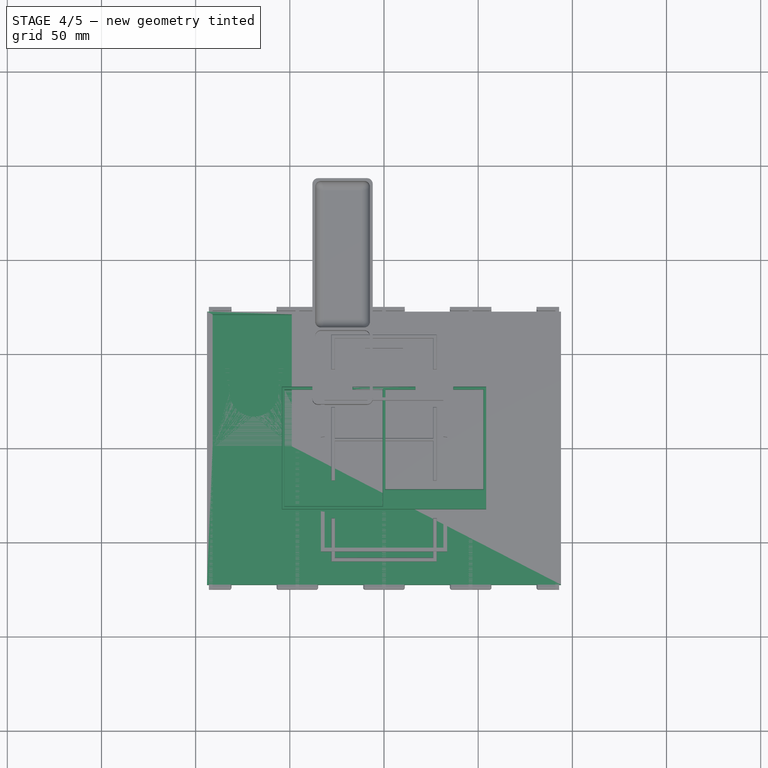
[diagram: stage 4 of 5 — top view after this stage's code; geometry added in this stage tinted green]
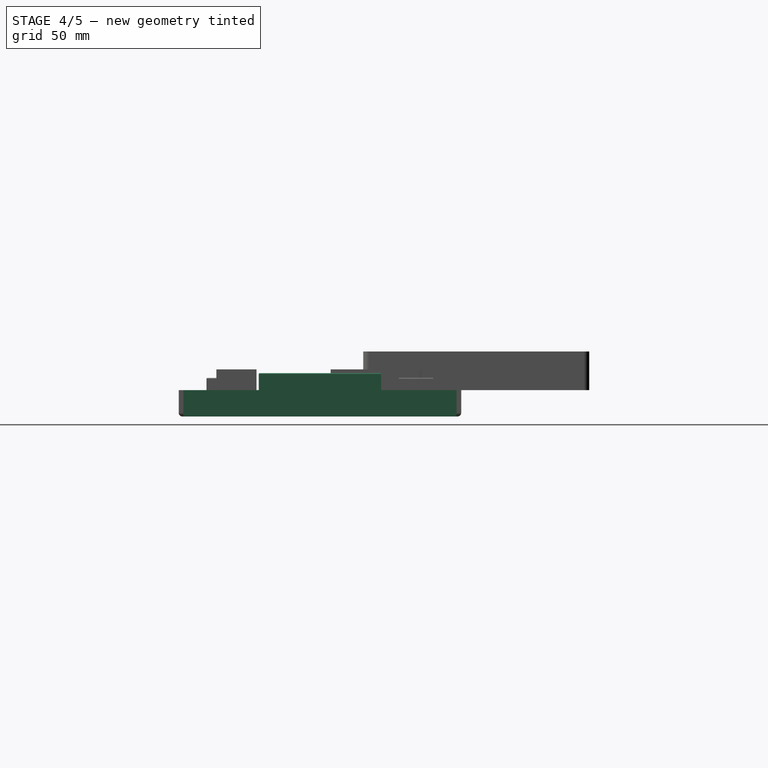
[diagram: stage 4 of 5 — right view after this stage's code; geometry added in this stage tinted green]
FEATURE [PartDesign::Body] Body
  Group = -> [Sketch,Pad,Thickness,Sketch001,Pad001,Mirrored]
  Origin = -> Origin
  Tip = -> Mirrored
FEATURE [Sketcher::SketchObject] Sketch002
  FullyConstrained = true
  MapMode = 5
  Support = -> [XY_Plane003]
  sketch-geometry (4):
    g0: LineSegment StartX=-94 StartY=72.5 StartZ=0 EndX=94 EndY=72.5 EndZ=0
    g1: LineSegment StartX=94 StartY=72.5 StartZ=0 EndX=94 EndY=-72.5 EndZ=0
    g2: LineSegment StartX=94 StartY=-72.5 StartZ=0 EndX=-94 EndY=-72.5 EndZ=0
    g3: LineSegment StartX=-94 StartY=-72.5 StartZ=0 EndX=-94 EndY=72.5 EndZ=0
  constraints (10):
    c: Coincident(g0,g1)
    c: Coincident(g1,g2)
    c: Coincident(g2,g3)
    c: Coincident(g3,g0)
    c: Horizontal(g2)
    c: Vertical(g1)
    c: DistanceX(g0,g0) = 188
    c: DistanceY(g3,g3) = 145
    c: Symmetric(g0,g2,g-1)
    c: Symmetric(g0,g0,g-2)
FEATURE [PartDesign::Pad] Pad002
  Direction = (0,0,1)
  Length = 14
  Length2 = 10
  Profile = -> Sketch002
  ReferenceAxis = -> Sketch002 [N_Axis]
  Type = 0
FEATURE [PartDesign::Plane] DatumPlane
  Length = 221.021
  MapMode = 5
  Placement = pos=(0,0,14) rot=(0,0,1;0rad)
  ResizeMode = 0
  Support = -> [Pad002]
  Width = 178.021
FEATURE [Sketcher::SketchObject] Sketch003
  AttachmentOffset = pos=(-70,1,0) rot=(0,0,1;0rad)
  FullyConstrained = true
  MapMode = 5
  Placement = pos=(-70,1,14) rot=(0,0,1;0rad)
  Support = -> [DatumPlane]
  sketch-geometry (4):
    g0: LineSegment StartX=-21 StartY=70 StartZ=0 EndX=21 EndY=70 EndZ=0
    g1: LineSegment StartX=21 StartY=70 StartZ=0 EndX=21 EndY=0 EndZ=0
    g2: LineSegment StartX=21 StartY=0 StartZ=0 EndX=-21 EndY=0 EndZ=0
    g3: LineSegment StartX=-21 StartY=0 StartZ=0 EndX=-21 EndY=70 EndZ=0
  constraints (11):
    c: Coincident(g0,g1)
    c: Coincident(g1,g2)
    c: Coincident(g2,g3)
    c: Coincident(g3,g0)
    c: Horizontal(g2)
    c: Vertical(g1)
    c: Vertical(g3)
    c: PointOnObject(g1,g-1)
    c: DistanceY(g3,g3) = 70
    c: DistanceX(g0,g0) = 42
    c: Symmetric(g0,g0,g-2)
FEATURE [PartDesign::Pocket] Pocket
  BaseFeature = -> Pad002
  Direction = (0,0,-1)
  Length = 12.5
  Length2 = 5
  Profile = -> Sketch003
  ReferenceAxis = -> Sketch003 [N_Axis]
  Type = 0
FEATURE [PartDesign::Body] Body001  label="Needs-Wide"
  Group = -> [Sketch002,Pad002,DatumPlane,Sketch003,Pocket,LinearPattern,Sketch004,Pocket001,LinearPattern001,Sketch005,Pocket002,MultiTransform,LinearPattern002,Mirrored001,Fillet,Fillet001,Fillet002]
  Origin = -> Origin003
  Placement = pos=(0,71,0) rot=(0,0,1;0rad)
  Tip = -> Fillet002
FEATURE [Sketcher::SketchObject] Sketch006
  FullyConstrained = true
  MapMode = 5
  Support = -> [XY_Plane005]
  sketch-geometry (4):
    g0: LineSegment StartX=-54.25 StartY=32.5 StartZ=0 EndX=54.25 EndY=32.5 EndZ=0
    g1: LineSegment StartX=54.25 StartY=32.5 StartZ=0 EndX=54.25 EndY=-32.5 EndZ=0
    g2: LineSegment StartX=54.25 StartY=-32.5 StartZ=0 EndX=-54.25 EndY=-32.5 EndZ=0
    g3: LineSegment StartX=-54.25 StartY=-32.5 StartZ=0 EndX=-54.25 EndY=32.5 EndZ=0
  constraints (10):
    c: Coincident(g0,g1)
    c: Coincident(g1,g2)
    c: Coincident(g2,g3)
    c: Coincident(g3,g0)
    c: Horizontal(g2)
    c: Vertical(g1)
    c: DistanceX(g0,g0) = 108.5
    c: Symmetric(g0,g0,g-2)
    c: Symmetric(g0,g2,g-1)
    c: DistanceY(g3,g3) = 65
FEATURE [PartDesign::Pad] Pad003
  Direction = (0,0,1)
  Length = 23
  Length2 = 10
  Profile = -> Sketch006
  ReferenceAxis = -> Sketch006 [N_Axis]
  Type = 0
FEATURE [PartDesign::Plane] DatumPlane001
  Length = 125.296
  MapMode = 5
  Placement = pos=(0,0,23) rot=(0,0,1;0rad)
  ResizeMode = 0
  Support = -> [Pad003]
  Width = 81.7958
FEATURE [Sketcher::SketchObject] Sketch007
  FullyConstrained = true
  MapMode = 5
  Placement = pos=(0,0,23) rot=(0,0,1;0rad)
  Support = -> [DatumPlane001]
  sketch-geometry (8):
    g0: LineSegment StartX=-52.75 StartY=31 StartZ=0 EndX=-0.75 EndY=31 EndZ=0
    g1: LineSegment StartX=-0.75 StartY=31 StartZ=0 EndX=-0.75 EndY=-31 EndZ=0
    g2: LineSegment StartX=-0.75 StartY=-31 StartZ=0 EndX=-52.75 EndY=-31 EndZ=0
    g3: LineSegment StartX=-52.75 StartY=-31 StartZ=0 EndX=-52.75 EndY=31 EndZ=0
    g4: LineSegment StartX=0.75 StartY=31 StartZ=0 EndX=52.75 EndY=31 EndZ=0
    g5: LineSegment StartX=52.75 StartY=31 StartZ=0 EndX=52.75 EndY=-22 EndZ=0
    g6: LineSegment StartX=52.75 StartY=-22 StartZ=0 EndX=0.75 EndY=-22 EndZ=0
    g7: LineSegment StartX=0.75 StartY=-22 StartZ=0 EndX=0.75 EndY=31 EndZ=0
  constraints (22):
    c: Coincident(g0,g1)
    c: Coincident(g1,g2)
    c: Coincident(g2,g3)
    c: Coincident(g3,g0)
    c: Horizontal(g0)
    c: Horizontal(g2)
    c: Vertical(g3)
    c: Coincident(g4,g5)
    c: Coincident(g5,g6)
    c: Coincident(g6,g7)
    c: Coincident(g7,g4)
    c: Horizontal(g4)
    c: Horizontal(g6)
    c: Vertical(g5)
    c: Vertical(g7)
    c: DistanceX(g4,g4) = 52
    c: DistanceX(g0,g0) = 52
    c: Symmetric(g0,g4,g-2)
    c: DistanceY(g3,g3) = 62
    c: DistanceX(g0,g4) = 1.5
    c: DistanceY(g7,g7) = 53
    c: Symmetric(g0,g1,g-1)
FEATURE [PartDesign::Pocket] Pocket003
  BaseFeature = -> Pad003
  Direction = (0,0,-1)
  Length = 21.5
  Length2 = 5
  Profile = -> Sketch007
  ReferenceAxis = -> Sketch007 [N_Axis]
  Type = 0
FEATURE [Sketcher::SketchObject] Sketch008
  AttachmentOffset = pos=(-26.75,0,0) rot=(0,0,1;0rad)
  FullyConstrained = true
  MapMode = 5
  Placement = pos=(-26.75,0,23) rot=(0,0,1;0rad)
  Support = -> [DatumPlane001]
  sketch-geometry (4):
    g0: LineSegment StartX=10 StartY=0 StartZ=0 EndX=10 EndY=40 EndZ=0
    g1: LineSegment StartX=10 StartY=40 StartZ=0 EndX=-10 EndY=40 EndZ=0
    g2: LineSegment StartX=-10 StartY=40 StartZ=0 EndX=-10 EndY=0 EndZ=0
    g3: ArcOfCircle CenterX=0 CenterY=-0.808293 CenterZ=0 NormalX=0 NormalY=0 NormalZ=1 AngleXU=0 Radius=10.0326 StartAngle=3.06094 EndAngle=6.36384
  constraints (12):
    c: Coincident(g0,g1)
    c: Coincident(g1,g2)
    c: Horizontal(g1)
    c: Vertical(g0)
    c: Vertical(g2)
    c: PointOnObject(g2,g-1)
    c: DistanceX(g1,g1) = 20
    c: Symmetric(g0,g2,g-2)
    c: DistanceY(g2,g2) = 40
    c: PointOnObject(g3,g-2)
    c: Coincident(g3,g2)
    c: Coincident(g3,g0)
FEATURE [PartDesign::Pocket] Pocket004
  BaseFeature = -> Pocket003
  Direction = (0,0,-1)
  Length = 5
  Length2 = 5
  Profile = -> Sketch008
  ReferenceAxis = -> Sketch008 [N_Axis]
  Type = 1
FEATURE [PartDesign::Mirrored] Mirrored002
  BaseFeature = -> Pocket004
  MirrorPlane = -> YZ_Plane005
  Originals = -> [Pocket004]
FEATURE [PartDesign::Fillet] Fillet003
  Base = -> Mirrored002 [Face2]
  BaseFeature = -> Mirrored002
  Radius = 1
  SupportTransform = false
  UseAllEdges = false
FEATURE [PartDesign::Fillet] Fillet004
  Base = -> Fillet003 [Face4]
  BaseFeature = -> Fillet003
  Radius = 0.5
  SupportTransform = false
  UseAllEdges = false
FEATURE [Sketcher::SketchObject] Sketch011
  AttachmentOffset = pos=(20,0,0) rot=(0,0,1;0rad)
  FullyConstrained = true
  MapMode = 5
  Placement = pos=(20,0,20.5) rot=(0,0,1;0rad)
  Support = -> [DatumPlane002]
  expr: Constraints[18] = 62 / 2 + 0.75
  expr: Constraints[23] = 53 / 2 + 0.75
  sketch-geometry (8):
    g0: LineSegment StartX=6e-16 StartY=41.75 StartZ=0 EndX=30 EndY=41.75 EndZ=0
    g1: LineSegment StartX=30 StartY=41.75 StartZ=0 EndX=30 EndY=21.75 EndZ=0
    g2: LineSegment StartX=30 StartY=21.75 StartZ=0 EndX=-3.6e-15 EndY=21.75 EndZ=0
    g3: LineSegment StartX=6e-16 StartY=-17.25 StartZ=0 EndX=30 EndY=-17.25 EndZ=0
    g4: LineSegment StartX=30 StartY=-17.25 StartZ=0 EndX=30 EndY=-37.25 EndZ=0
    g5: LineSegment StartX=30 StartY=-37.25 StartZ=0 EndX=-3.6e-15 EndY=-37.25 EndZ=0
    g6: ArcOfCircle CenterX=0 CenterY=31.75 CenterZ=0 NormalX=0 NormalY=0 NormalZ=1 AngleXU=0 Radius=10 StartAngle=1.5708 EndAngle=4.71239
    g7: ArcOfCircle CenterX=0 CenterY=-27.25 CenterZ=0 NormalX=0 NormalY=0 NormalZ=1 AngleXU=0 Radius=10 StartAngle=1.5708 EndAngle=4.71239
  constraints (26):
    c: Coincident(g0,g1)
    c: Coincident(g1,g2)
    c: Horizontal(g0)
    c: Horizontal(g2)
    c: Vertical(g1)
    c: PointOnObject(g0,g-2)
    c: Coincident(g3,g4)
    c: Coincident(g4,g5)
    c: Horizontal(g3)
    c: Horizontal(g5)
    c: Vertical(g4)
    c: PointOnObject(g3,g-2)
    c: PointOnObject(g6,g-2)
    c: Coincident(g6,g0)
    c: Coincident(g6,g2)
    c: PointOnObject(g7,g-2)
    c: Coincident(g7,g3)
    c: Coincident(g7,g5)
    c: DistanceY(g-1,g6) = 31.75
    c: DistanceY(g1,g1) = 20
    c: DistanceY(g4,g4) = 20
    c: DistanceX(g3,g3) = 30
    c: DistanceX(g0,g0) = 30
    c: DistanceY(g7,g-1) = 27.25
    c: PointOnObject(g5,g-2)
    c: PointOnObject(g2,g-2)
FEATURE [PartDesign::Pocket] Pocket006
  BaseFeature = -> Pocket005
  Direction = (0,0,-1)
  Length = 5
  Length2 = 5
  Profile = -> Sketch011
  ReferenceAxis = -> Sketch011 [N_Axis]
  Type = 1
FEATURE [PartDesign::Mirrored] Mirrored003
  BaseFeature = -> Pocket006
  MirrorPlane = -> YZ_Plane006
  Originals = -> [Pocket006]
FEATURE [PartDesign::Fillet] Fillet005
  Base = -> Mirrored003 [Face4]
  BaseFeature = -> Mirrored003
  Radius = 1
  SupportTransform = false
  UseAllEdges = false
FEATURE [PartDesign::Fillet] Fillet006
  Base = -> Fillet005 [Face4,Face50,Face55]
  BaseFeature = -> Fillet005
  Radius = 0.5
  SupportTransform = false
  UseAllEdges = false
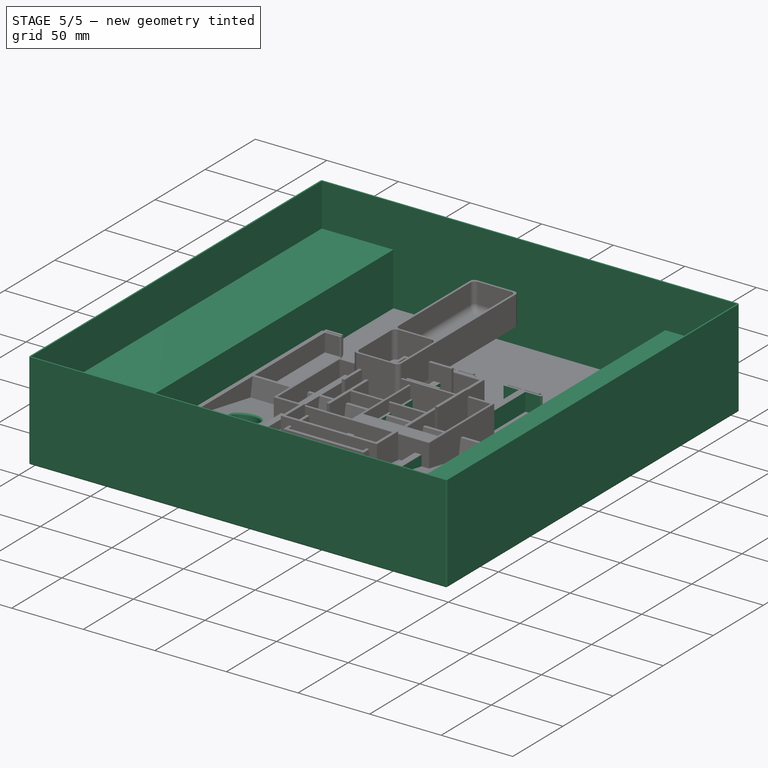
[diagram: stage 5 of 5 — iso view after this stage's code; geometry added in this stage tinted green]
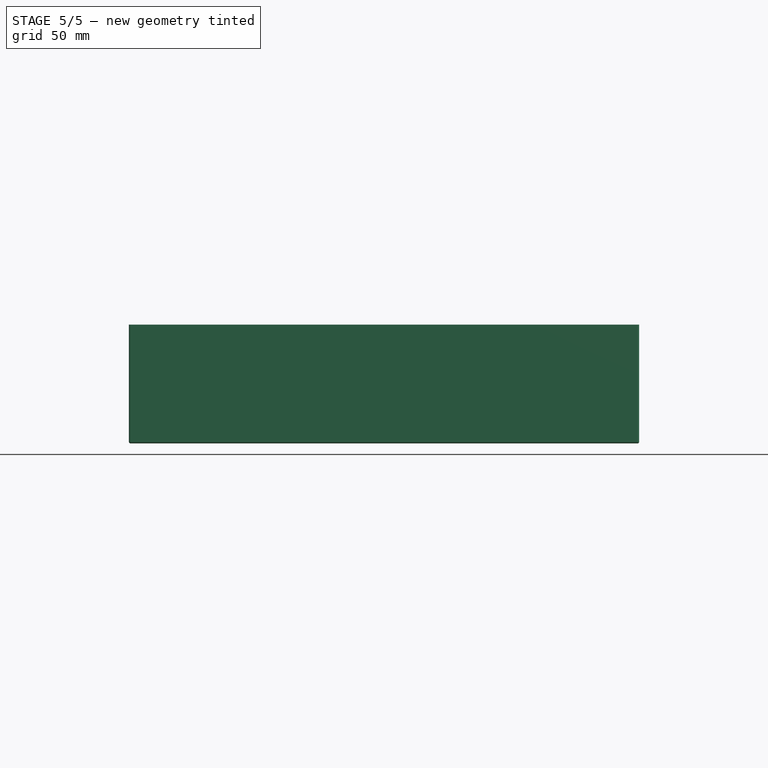
[diagram: stage 5 of 5 — front view after this stage's code; geometry added in this stage tinted green]
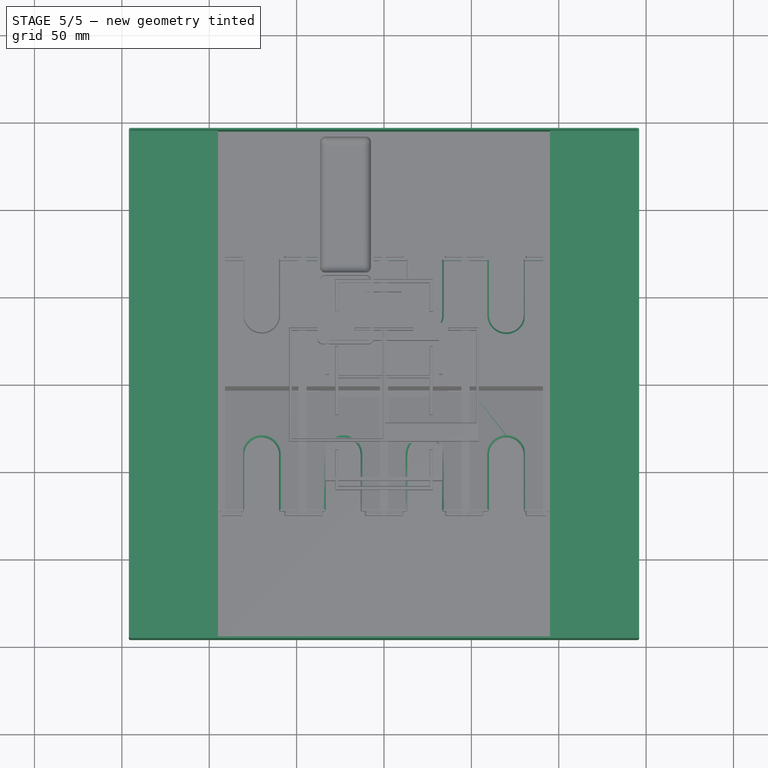
[diagram: stage 5 of 5 — top view after this stage's code; geometry added in this stage tinted green]
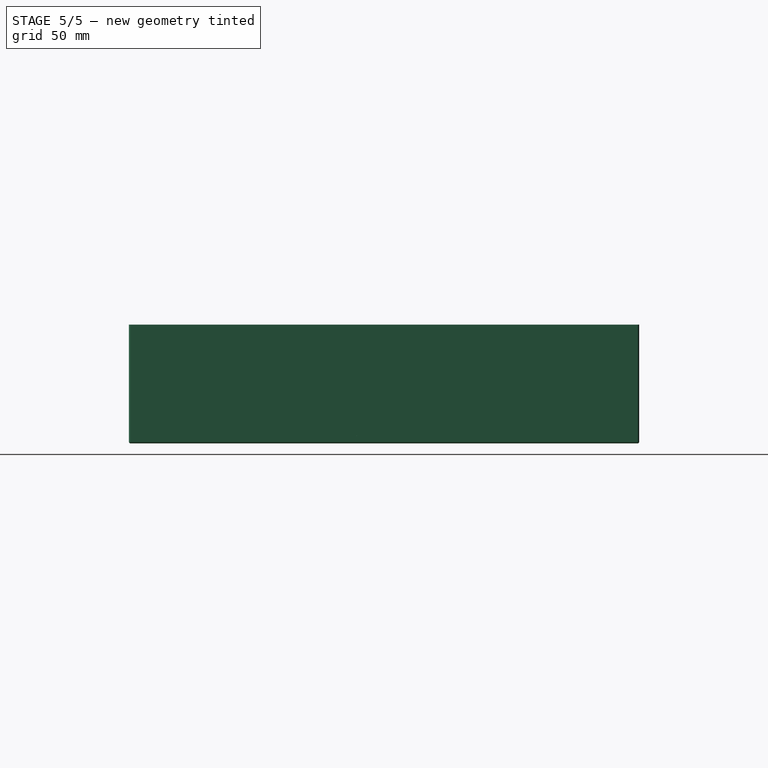
[diagram: stage 5 of 5 — right view after this stage's code; geometry added in this stage tinted green]
FEATURE [Sketcher::SketchObject] Sketch
  FullyConstrained = true
  MapMode = 5
  Support = -> [XY_Plane]
  sketch-geometry (4):
    g0: LineSegment StartX=-145 StartY=145 StartZ=0 EndX=145 EndY=145 EndZ=0
    g1: LineSegment StartX=145 StartY=145 StartZ=0 EndX=145 EndY=-145 EndZ=0
    g2: LineSegment StartX=145 StartY=-145 StartZ=0 EndX=-145 EndY=-145 EndZ=0
    g3: LineSegment StartX=-145 StartY=-145 StartZ=0 EndX=-145 EndY=145 EndZ=0
  constraints (10):
    c: Coincident(g0,g1)
    c: Coincident(g1,g2)
    c: Coincident(g2,g3)
    c: Coincident(g3,g0)
    c: Horizontal(g2)
    c: Vertical(g1)
    c: DistanceX(g0,g0) = 290
    c: DistanceY(g3,g3) = 290
    c: Symmetric(g0,g0,g-2)
    c: Symmetric(g2,g0,g-1)
FEATURE [PartDesign::Pad] Pad
  Direction = (0,0,1)
  Length = 67
  Length2 = 10
  Profile = -> Sketch
  ReferenceAxis = -> Sketch [N_Axis]
  Type = 0
FEATURE [PartDesign::Thickness] Thickness
  Base = -> Pad [Face6]
  BaseFeature = -> Pad
  Intersection = false
  Join = 0
  Mode = 0
  SupportTransform = false
  Value = 1
FEATURE [Sketcher::SketchObject] Sketch001
  AttachmentOffset = pos=(120,0,0) rot=(0,0,1;0rad)
  FullyConstrained = true
  MapMode = 5
  Placement = pos=(120,0,0) rot=(0,0,1;0rad)
  Support = -> [Thickness]
  sketch-geometry (4):
    g0: LineSegment StartX=-25 StartY=145 StartZ=0 EndX=25 EndY=145 EndZ=0
    g1: LineSegment StartX=25 StartY=145 StartZ=0 EndX=25 EndY=-145 EndZ=0
    g2: LineSegment StartX=25 StartY=-145 StartZ=0 EndX=-25 EndY=-145 EndZ=0
    g3: LineSegment StartX=-25 StartY=-145 StartZ=0 EndX=-25 EndY=145 EndZ=0
  constraints (10):
    c: Coincident(g0,g1)
    c: Coincident(g1,g2)
    c: Coincident(g2,g3)
    c: Coincident(g3,g0)
    c: Horizontal(g2)
    c: Vertical(g1)
    c: DistanceX(g0,g0) = 50
    c: DistanceY(g3,g3) = 290
    c: Symmetric(g0,g0,g-2)
    c: Symmetric(g0,g2,g-1)
FEATURE [PartDesign::Pad] Pad001
  BaseFeature = -> Thickness
  Direction = (0,0,1)
  Length = 37
  Length2 = 10
  Profile = -> Sketch001
  ReferenceAxis = -> Sketch001 [N_Axis]
  Type = 0
FEATURE [PartDesign::Mirrored] Mirrored
  BaseFeature = -> Pad001
  MirrorPlane = -> YZ_Plane
  Originals = -> [Pad001]
FEATURE [PartDesign::LinearPattern] LinearPattern
  BaseFeature = -> Pocket
  Direction = -> Sketch003 [H_Axis]
  Length = 140
  Occurrences = 4
  Originals = -> [Pocket]
FEATURE [Sketcher::SketchObject] Sketch004
  AttachmentOffset = pos=(-70,0,0) rot=(1,0,0;-0.174533rad)
  FullyConstrained = true
  MapMode = 5
  Placement = pos=(-70,0,14) rot=(1,0,0;6.10865rad)
  Support = -> [DatumPlane]
  sketch-geometry (4):
    g0: LineSegment StartX=-21 StartY=0 StartZ=0 EndX=21 EndY=1e-16 EndZ=0
    g1: LineSegment StartX=21 StartY=1e-16 StartZ=0 EndX=21 EndY=-73 EndZ=0
    g2: LineSegment StartX=21 StartY=-73 StartZ=0 EndX=-21 EndY=-73 EndZ=0
    g3: LineSegment StartX=-21 StartY=-73 StartZ=0 EndX=-21 EndY=0 EndZ=0
  constraints (11):
    c: Coincident(g0,g1)
    c: Coincident(g1,g2)
    c: Coincident(g2,g3)
    c: Coincident(g3,g0)
    c: Horizontal(g2)
    c: Vertical(g1)
    c: Vertical(g3)
    c: PointOnObject(g0,g-1)
    c: DistanceY(g3,g3) = 73
    c: DistanceX(g0,g0) = 42
    c: Symmetric(g0,g0,g-2)
FEATURE [PartDesign::Pocket] Pocket001
  BaseFeature = -> LinearPattern
  Direction = (0,-0.173648,-0.984808)
  Length = 13
  Length2 = 5
  Profile = -> Sketch004
  ReferenceAxis = -> Sketch004 [N_Axis]
  Type = 0
FEATURE [PartDesign::LinearPattern] LinearPattern001
  BaseFeature = -> Pocket001
  Direction = -> Sketch004 [H_Axis]
  Length = 140
  Occurrences = 4
  Originals = -> [Pocket001]
FEATURE [Sketcher::SketchObject] Sketch005
  AttachmentOffset = pos=(-70,40,0) rot=(0,0,1;0rad)
  FullyConstrained = true
  MapMode = 5
  Placement = pos=(-70,40,14) rot=(0,0,1;0rad)
  Support = -> [DatumPlane]
  sketch-geometry (4):
    g0: LineSegment StartX=10 StartY=0 StartZ=0 EndX=10 EndY=50 EndZ=0
    g1: LineSegment StartX=10 StartY=50 StartZ=0 EndX=-10 EndY=50 EndZ=0
    g2: LineSegment StartX=-10 StartY=50 StartZ=0 EndX=-10 EndY=0 EndZ=0
    g3: ArcOfCircle CenterX=0 CenterY=0 CenterZ=0 NormalX=0 NormalY=0 NormalZ=1 AngleXU=0 Radius=10 StartAngle=3.14159 EndAngle=6.28319
  constraints (12):
    c: Coincident(g0,g1)
    c: Coincident(g1,g2)
    c: Horizontal(g1)
    c: Vertical(g0)
    c: Vertical(g2)
    c: PointOnObject(g2,g-1)
    c: DistanceX(g1,g1) = 20
    c: Coincident(g3,g-1)
    c: DistanceY(g2,g2) = 50
    c: Coincident(g3,g2)
    c: Coincident(g0,g3)
    c: PointOnObject(g0,g-1)
FEATURE [PartDesign::Pocket] Pocket002
  BaseFeature = -> LinearPattern001
  Direction = (0,0,-1)
  Length = 5
  Length2 = 5
  Profile = -> Sketch005
  ReferenceAxis = -> Sketch005 [N_Axis]
  Type = 1
FEATURE [PartDesign::LinearPattern] LinearPattern002
  Direction = -> Sketch005 [H_Axis]
  Length = 140
  Occurrences = 4
FEATURE [PartDesign::Mirrored] Mirrored001
  MirrorPlane = -> XZ_Plane003
FEATURE [PartDesign::MultiTransform] MultiTransform
  BaseFeature = -> Pocket002
  Originals = -> [Pocket002]
  Transformations = -> [LinearPattern002,Mirrored001]
FEATURE [PartDesign::Fillet] Fillet
  Base = -> MultiTransform [Edge169,Edge160,Edge158,Edge149,Edge147,Edge138,Edge136,Edge129,Edge172,Edge161,Edge164,Edge150,Edge153,Edge139,Edge142,Edge130,Edge170,Edge167,Edge165,Edge159,Edge156,Edge154,Edge148,Edge145,Edge143,Edge137,Edge134,Edge132]
  BaseFeature = -> MultiTransform
  Radius = 1
  SupportTransform = false
  UseAllEdges = false
FEATURE [PartDesign::Fillet] Fillet001
  Base = -> Fillet [Edge61,Edge67,Edge62,Edge73,Edge72,Edge88,Edge87,Edge93,Edge99,Edge98,Edge108,Edge107,Edge119,Edge125,Edge124,Edge134,Edge133,Edge139,Edge145,Edge144]
  BaseFeature = -> Fillet
  Radius = 1
  SupportTransform = false
  UseAllEdges = false
FEATURE [PartDesign::Fillet] Fillet002
  Base = -> Fillet001 [Edge108,Edge74,Edge68,Edge82,Edge90,Edge98,Edge106,Edge72,Edge81,Edge93,Edge105,Edge110]
  BaseFeature = -> Fillet001
  Radius = 2
  SupportTransform = false
  UseAllEdges = false
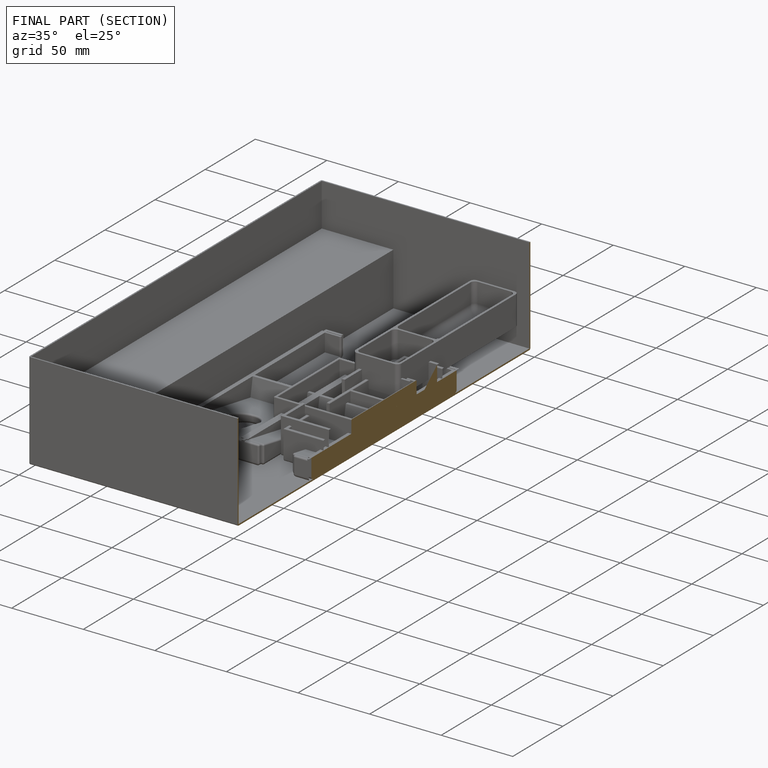
[diagram: finished part — half-section view (interior)]
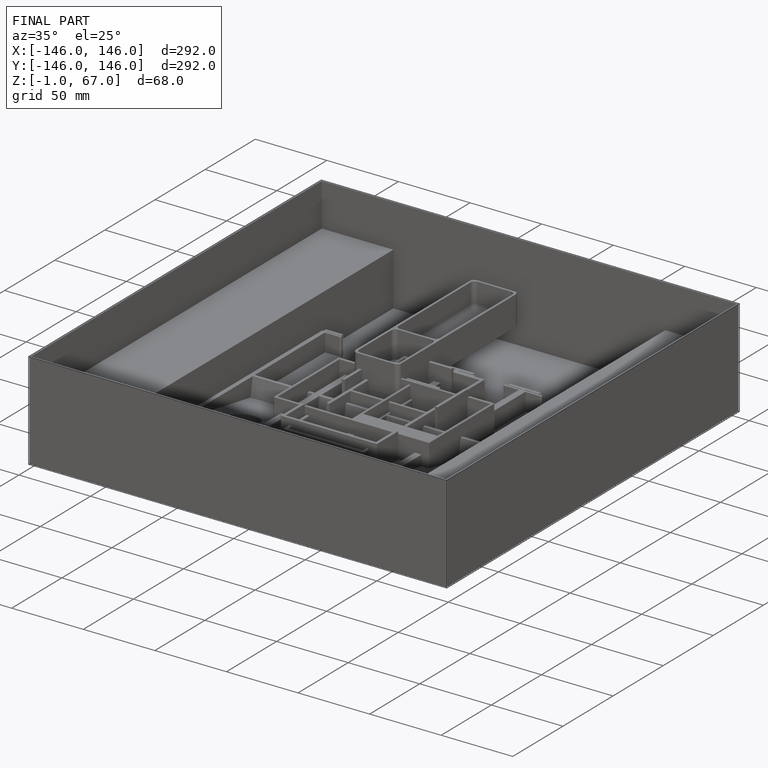
[diagram: finished part — iso view with bounding-box wireframe]
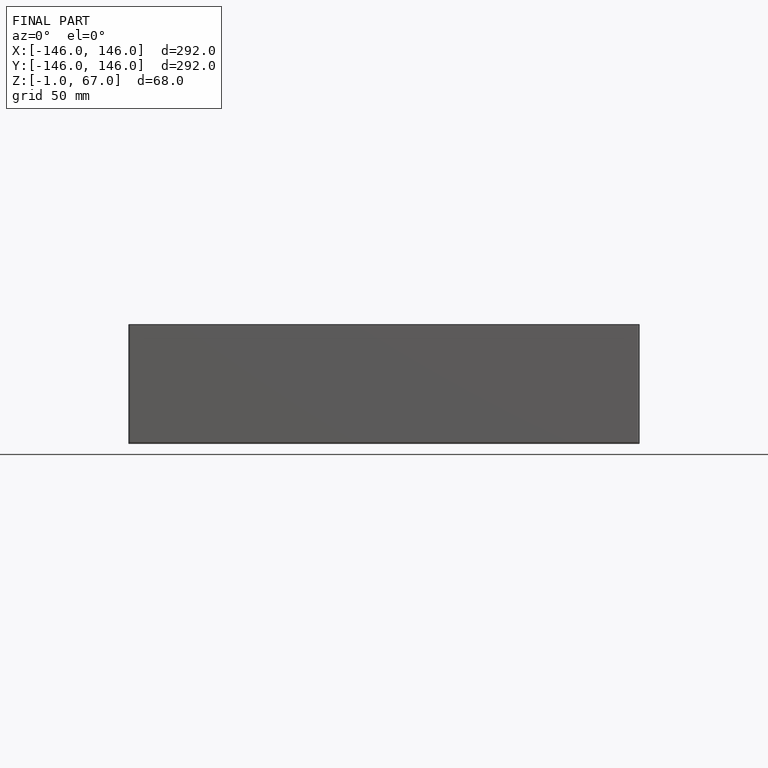
[diagram: finished part — front view with bounding-box wireframe]
